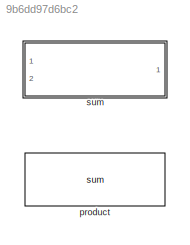
MODEL slx_9b6dd97d6bc2
KIND library
CONFIG AbsTol = auto
CONFIG FixedStep = auto
CONFIG MaxStep = auto
CONFIG MinStep = auto
CONFIG RelTol = 1e-3
CONFIG SampleTimeConstraint = Unconstrained
CONFIG Solver = ode45
CONFIG SolverMode = Auto
CONFIG SolverName = ode45
CONFIG StartTime = 0.0
CONFIG StopTime = 10.0
BLOCK [Reference] product  REF=math/sum  (lib defined in slx_9a40bd2bc019, slx_9b6dd97d6bc2)
  Ports = [2, 1]
  SourceBlock = math/sum
  SourceType = SubSystem
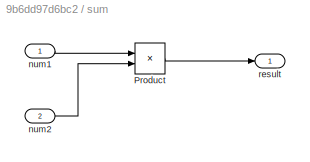
BLOCK [SubSystem] sum
  Ports = [2, 1]
  RequestExecContextInheritance = off
  Variant = off
BLOCK [Product] sum/Product
  InputSameDT = off
  OutDataTypeStr = Inherit: Inherit via internal rule
  Ports = [2, 1]
  RndMeth = Floor
  SaturateOnIntegerOverflow = off
BLOCK [Inport] sum/num1
  IconDisplay = Port number
  OutDataTypeStr = double
BLOCK [Inport] sum/num2
  IconDisplay = Port number
  OutDataTypeStr = double
  Port = 2
BLOCK [Outport] sum/result
  IconDisplay = Port number
  OutDataTypeStr = double
LINE sum/Product:1 -> sum/result:1
LINE sum/num1:1 -> sum/Product:1
LINE sum/num2:1 -> sum/Product:2
